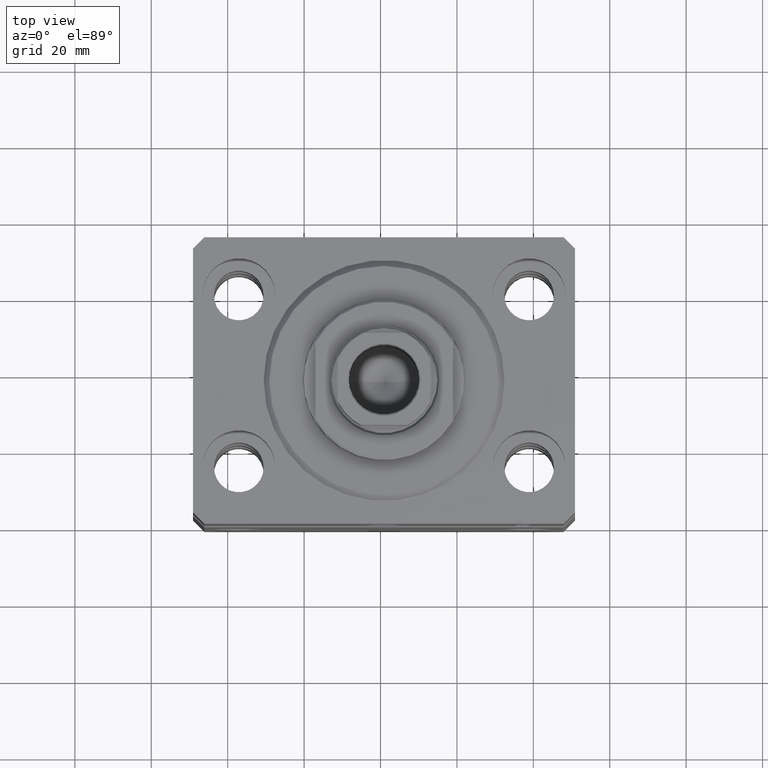
[diagram: clean part render]
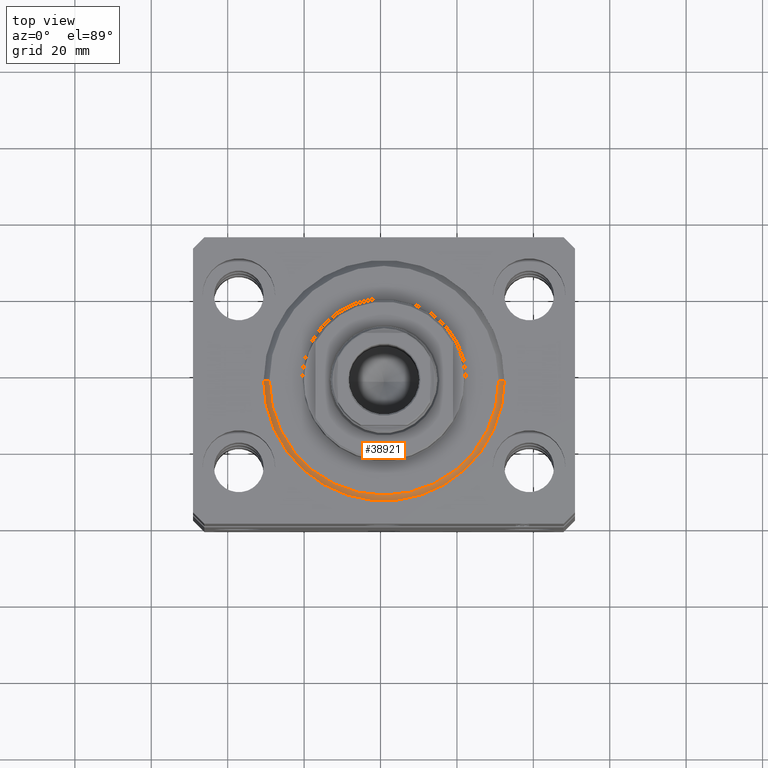
[diagram: same view with one face highlighted and labeled with its STEP entity id]
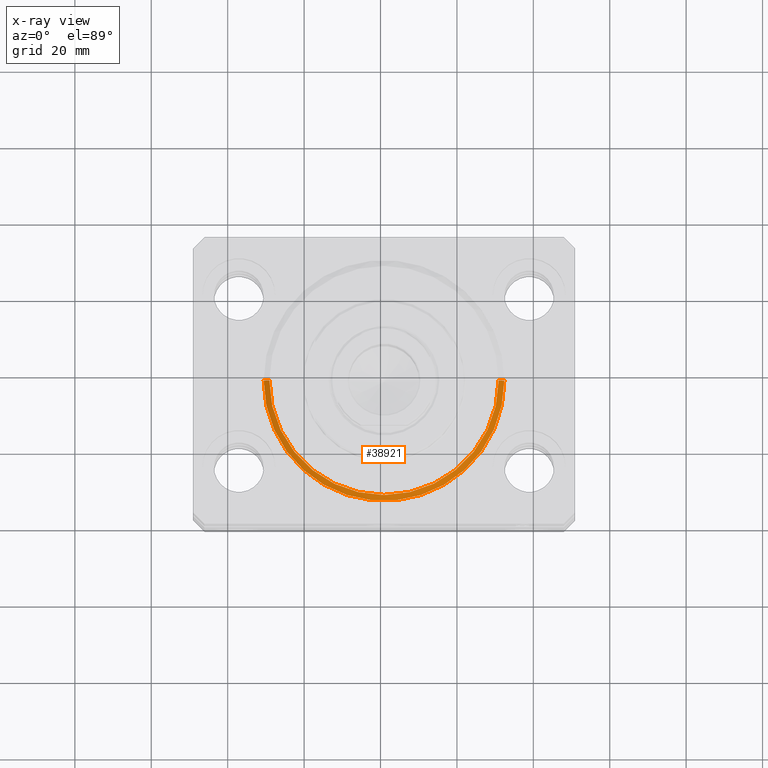
[diagram: x-ray of the same camera — body ghosted, the highlighted face saturated]
A machine part, top view. The second image highlights one B-rep face of the part: STEP entity #38921.
The next image is the same camera in x-ray: the body ghosted, the highlighted face saturated — about 0% of this face is hidden behind the body in this view.
In plain terms, the highlighted conical surface has half-angle 45 deg.
Its self-contained STEP definition (entity closure, byte-faithful):
#659 = EDGE_CURVE ( 'NONE', #43962, #43177, #41241, .T. ) ;
#3292 = CARTESIAN_POINT ( 'NONE',  ( 31.50000000000000000, 3.857637417314162689E-15, 1.500000000000001332 ) ) ;
#5327 = FACE_OUTER_BOUND ( 'NONE', #36894, .T. ) ;
#6546 = ORIENTED_EDGE ( 'NONE', *, *, #21733, .F. ) ;
#7970 = ORIENTED_EDGE ( 'NONE', *, *, #31513, .F. ) ;
#8643 = DIRECTION ( 'NONE',  ( -0.000000000000000000, -0.000000000000000000, 1.000000000000000000 ) ) ;
#9544 = VERTEX_POINT ( 'NONE', #24271 ) ;
#10640 = LINE ( 'NONE', #24656, #45169 ) ;
#11519 = VERTEX_POINT ( 'NONE', #14897 ) ;
#14897 = CARTESIAN_POINT ( 'NONE',  ( -29.99999999999999289, 3.765788907378110539E-15, 0.000000000000000000 ) ) ;
#16081 = DIRECTION ( 'NONE',  ( 1.000000000000000000, 0.000000000000000000, 0.000000000000000000 ) ) ;
#16836 = VECTOR ( 'NONE', #45123, 1000.000000000000000 ) ;
#18702 = ORIENTED_EDGE ( 'NONE', *, *, #659, .F. ) ;
#18755 = CARTESIAN_POINT ( 'NONE',  ( -31.50000000000000000, 0.000000000000000000, 1.500000000000001332 ) ) ;
#21733 = EDGE_CURVE ( 'NONE', #9544, #11519, #21913, .T. ) ;
#21913 = CIRCLE ( 'NONE', #32214, 29.99999999999999289 ) ;
#22000 = DIRECTION ( 'NONE',  ( 1.000000000000000000, 0.000000000000000000, 0.000000000000000000 ) ) ;
#24100 = CONICAL_SURFACE ( 'NONE', #39502, 31.50000000000000000, 0.7853981633974506105 ) ;
#24271 = CARTESIAN_POINT ( 'NONE',  ( 29.99999999999999289, 0.000000000000000000, 0.000000000000000000 ) ) ;
#24425 = DIRECTION ( 'NONE',  ( -0.7071067811865491270, 8.659560562354952580E-17, 0.7071067811865459074 ) ) ;
#24656 = CARTESIAN_POINT ( 'NONE',  ( -31.50000000000000000, 3.857637417314162689E-15, 1.500000000000001332 ) ) ;
#26471 = CARTESIAN_POINT ( 'NONE',  ( 0.000000000000000000, 0.000000000000000000, 1.500000000000001332 ) ) ;
#31513 = EDGE_CURVE ( 'NONE', #11519, #43962, #10640, .T. ) ;
#32028 = LINE ( 'NONE', #35699, #16836 ) ;
#32214 = AXIS2_PLACEMENT_3D ( 'NONE', #37478, #34490, #16081 ) ;
#32475 = AXIS2_PLACEMENT_3D ( 'NONE', #35801, #8643, #22000 ) ;
#34490 = DIRECTION ( 'NONE',  ( -0.000000000000000000, -0.000000000000000000, -1.000000000000000000 ) ) ;
#35699 = CARTESIAN_POINT ( 'NONE',  ( 31.50000000000000000, 0.000000000000000000, 1.500000000000001332 ) ) ;
#35801 = CARTESIAN_POINT ( 'NONE',  ( 0.000000000000000000, 0.000000000000000000, 1.500000000000001332 ) ) ;
#36894 = EDGE_LOOP ( 'NONE', ( #7970, #6546, #42742, #18702 ) ) ;
#37478 = CARTESIAN_POINT ( 'NONE',  ( 0.000000000000000000, 0.000000000000000000, 0.000000000000000000 ) ) ;
#38921 = ADVANCED_FACE ( 'NONE', ( #5327 ), #24100, .T. ) ;
#39502 = AXIS2_PLACEMENT_3D ( 'NONE', #26471, #40484, #39594 ) ;
#39594 = DIRECTION ( 'NONE',  ( 1.000000000000000000, 0.000000000000000000, 0.000000000000000000 ) ) ;
#40484 = DIRECTION ( 'NONE',  ( -0.000000000000000000, -0.000000000000000000, 1.000000000000000000 ) ) ;
#41241 = CIRCLE ( 'NONE', #32475, 31.50000000000000000 ) ;
#42395 = EDGE_CURVE ( 'NONE', #9544, #43177, #32028, .T. ) ;
#42742 = ORIENTED_EDGE ( 'NONE', *, *, #42395, .T. ) ;
#43177 = VERTEX_POINT ( 'NONE', #3292 ) ;
#43962 = VERTEX_POINT ( 'NONE', #18755 ) ;
#45123 = DIRECTION ( 'NONE',  ( 0.7071067811865491270, 0.000000000000000000, 0.7071067811865459074 ) ) ;
#45169 = VECTOR ( 'NONE', #24425, 1000.000000000000000 ) ;